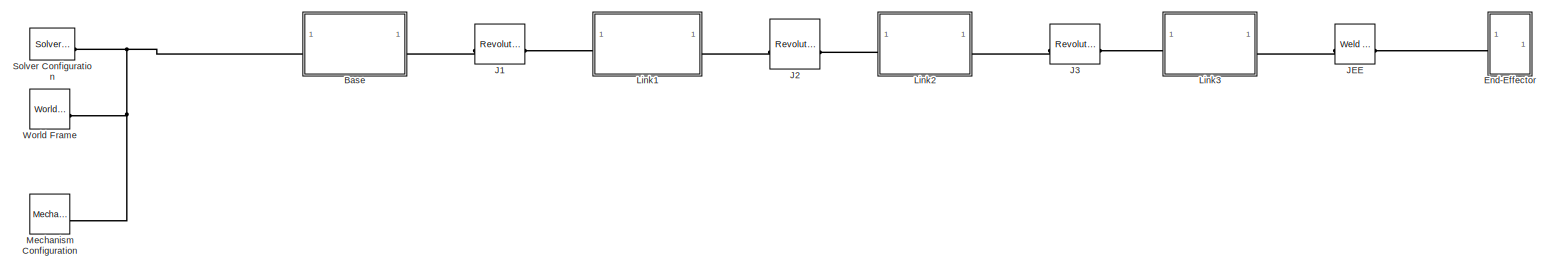
[diagram: root canvas - part 1/1, most of the canvas]
MODEL slx_2e2fd015d4d2
KIND model
CONFIG AbsTol = auto
CONFIG EnableMultiTasking = off
CONFIG FixedStep = auto
CONFIG MaxStep = auto
CONFIG MinStep = auto
CONFIG RelTol = 1e-3
CONFIG SampleTimeConstraint = Unconstrained
CONFIG SolverName = VariableStepAuto
CONFIG StartTime = 0.0
CONFIG StopTime = 10.0
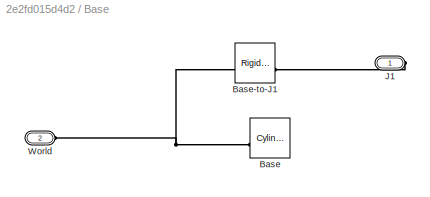
BLOCK [SubSystem] Base
BLOCK [Reference] Base/Base  REF=sm_lib/Body Elements/Cylindrical Solid
  SourceBlock = sm_lib/Body Elements/Cylindrical Solid
  SourceType = Cylindrical Solid
BLOCK [Reference] Base/Base-to-J1  REF=sm_lib/Frames and
Transforms/Rigid
Transform
  SourceBlock = sm_lib/Frames and\nTransforms/Rigid\nTransform
  SourceType = Rigid\nTransform
BLOCK [PMIOPort] Base/J1
  Side = Right
BLOCK [PMIOPort] Base/World
  Port = 2
  Side = Left
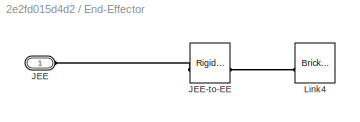
BLOCK [SubSystem] End-Effector
BLOCK [PMIOPort] End-Effector/JEE
  Side = Left
BLOCK [Reference] End-Effector/JEE-to-EE  REF=sm_lib/Frames and
Transforms/Rigid
Transform
  SourceBlock = sm_lib/Frames and\nTransforms/Rigid\nTransform
  SourceType = Rigid\nTransform
BLOCK [Reference] End-Effector/Link4  REF=sm_lib/Body Elements/Brick Solid
  SourceBlock = sm_lib/Body Elements/Brick Solid
  SourceType = Brick Solid
BLOCK [Reference] J1  REF=sm_lib/Joints/Revolute Joint
  SourceBlock = sm_lib/Joints/Revolute Joint
  SourceType = Revolute Joint
BLOCK [Reference] J2  REF=sm_lib/Joints/Revolute Joint
  SourceBlock = sm_lib/Joints/Revolute Joint
  SourceType = Revolute Joint
BLOCK [Reference] J3  REF=sm_lib/Joints/Revolute Joint
  SourceBlock = sm_lib/Joints/Revolute Joint
  SourceType = Revolute Joint
BLOCK [Reference] JEE  REF=sm_lib/Joints/Weld Joint
  SourceBlock = sm_lib/Joints/Weld Joint
  SourceType = Weld Joint
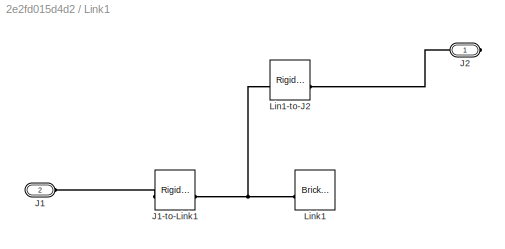
BLOCK [SubSystem] Link1
BLOCK [PMIOPort] Link1/J1
  Port = 2
  Side = Left
BLOCK [Reference] Link1/J1-to-Link1  REF=sm_lib/Frames and
Transforms/Rigid
Transform
  SourceBlock = sm_lib/Frames and\nTransforms/Rigid\nTransform
  SourceType = Rigid\nTransform
BLOCK [PMIOPort] Link1/J2
  Side = Right
BLOCK [Reference] Link1/Lin1-to-J2  REF=sm_lib/Frames and
Transforms/Rigid
Transform
  SourceBlock = sm_lib/Frames and\nTransforms/Rigid\nTransform
  SourceType = Rigid\nTransform
BLOCK [Reference] Link1/Link1  REF=sm_lib/Body Elements/Brick Solid
  SourceBlock = sm_lib/Body Elements/Brick Solid
  SourceType = Brick Solid
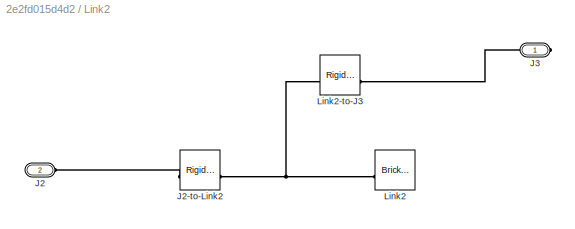
BLOCK [SubSystem] Link2
BLOCK [PMIOPort] Link2/J2
  Port = 2
  Side = Left
BLOCK [Reference] Link2/J2-to-Link2  REF=sm_lib/Frames and
Transforms/Rigid
Transform
  SourceBlock = sm_lib/Frames and\nTransforms/Rigid\nTransform
  SourceType = Rigid\nTransform
BLOCK [PMIOPort] Link2/J3
  Side = Right
BLOCK [Reference] Link2/Link2  REF=sm_lib/Body Elements/Brick Solid
  SourceBlock = sm_lib/Body Elements/Brick Solid
  SourceType = Brick Solid
BLOCK [Reference] Link2/Link2-to-J3  REF=sm_lib/Frames and
Transforms/Rigid
Transform
  SourceBlock = sm_lib/Frames and\nTransforms/Rigid\nTransform
  SourceType = Rigid\nTransform
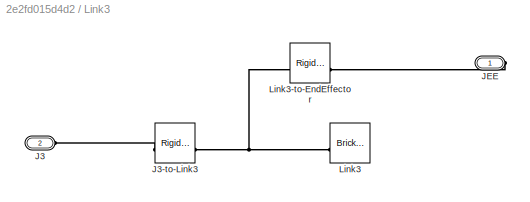
BLOCK [SubSystem] Link3
BLOCK [PMIOPort] Link3/J3
  Port = 2
  Side = Left
BLOCK [Reference] Link3/J3-to-Link3  REF=sm_lib/Frames and
Transforms/Rigid
Transform
  SourceBlock = sm_lib/Frames and\nTransforms/Rigid\nTransform
  SourceType = Rigid\nTransform
BLOCK [PMIOPort] Link3/JEE
  Side = Right
BLOCK [Reference] Link3/Link3  REF=sm_lib/Body Elements/Brick Solid
  SourceBlock = sm_lib/Body Elements/Brick Solid
  SourceType = Brick Solid
BLOCK [Reference] Link3/Link3-to-EndEffector  REF=sm_lib/Frames and
Transforms/Rigid
Transform
  SourceBlock = sm_lib/Frames and\nTransforms/Rigid\nTransform
  SourceType = Rigid\nTransform
BLOCK [Reference] Mechanism Configuration  REF=sm_lib/Utilities/Mechanism
Configuration
  SourceBlock = sm_lib/Utilities/Mechanism\nConfiguration
  SourceType = Mechanism\nConfiguration
BLOCK [Reference] Solver Configuration  REF=nesl_utility/Solver
Configuration
  SourceBlock = nesl_utility/Solver\nConfiguration
  SourceType = Solver\nConfiguration
BLOCK [Reference] World Frame  REF=sm_lib/Frames and
Transforms/World Frame
  SourceBlock = sm_lib/Frames and\nTransforms/World Frame
  SourceType = World Frame
PNET net1: Base/Base-to-J1:LConn1 -- Base/Base:RConn1 -- Base/World:RConn1
PLINE Base/Base-to-J1:RConn1 -- Base/J1:RConn1
PNET net2: Base:LConn1 -- Mechanism Configuration:RConn1 -- Solver Configuration:RConn1 -- World Frame:RConn1
PLINE Base:RConn1 -- J1:LConn1
PLINE End-Effector/JEE-to-EE:LConn1 -- End-Effector/JEE:RConn1
PLINE End-Effector/JEE-to-EE:RConn1 -- End-Effector/Link4:RConn1
PLINE End-Effector:LConn1 -- JEE:RConn1
PLINE J1:RConn1 -- Link1:LConn1
PLINE J2:LConn1 -- Link1:RConn1
PLINE J2:RConn1 -- Link2:LConn1
PLINE J3:LConn1 -- Link2:RConn1
PLINE J3:RConn1 -- Link3:LConn1
PLINE JEE:LConn1 -- Link3:RConn1
PLINE Link1/J1-to-Link1:LConn1 -- Link1/J1:RConn1
PNET net3: Link1/J1-to-Link1:RConn1 -- Link1/Lin1-to-J2:LConn1 -- Link1/Link1:RConn1
PLINE Link1/J2:RConn1 -- Link1/Lin1-to-J2:RConn1
PLINE Link2/J2-to-Link2:LConn1 -- Link2/J2:RConn1
PNET net4: Link2/J2-to-Link2:RConn1 -- Link2/Link2-to-J3:LConn1 -- Link2/Link2:RConn1
PLINE Link2/J3:RConn1 -- Link2/Link2-to-J3:RConn1
PLINE Link3/J3-to-Link3:LConn1 -- Link3/J3:RConn1
PNET net5: Link3/J3-to-Link3:RConn1 -- Link3/Link3-to-EndEffector:LConn1 -- Link3/Link3:RConn1
PLINE Link3/JEE:RConn1 -- Link3/Link3-to-EndEffector:RConn1
note: PNET lines group multi-terminal physical nets as a canonical sorted terminal list (undirected conserving connections); 2-terminal nets keep the pairwise PLINE form
